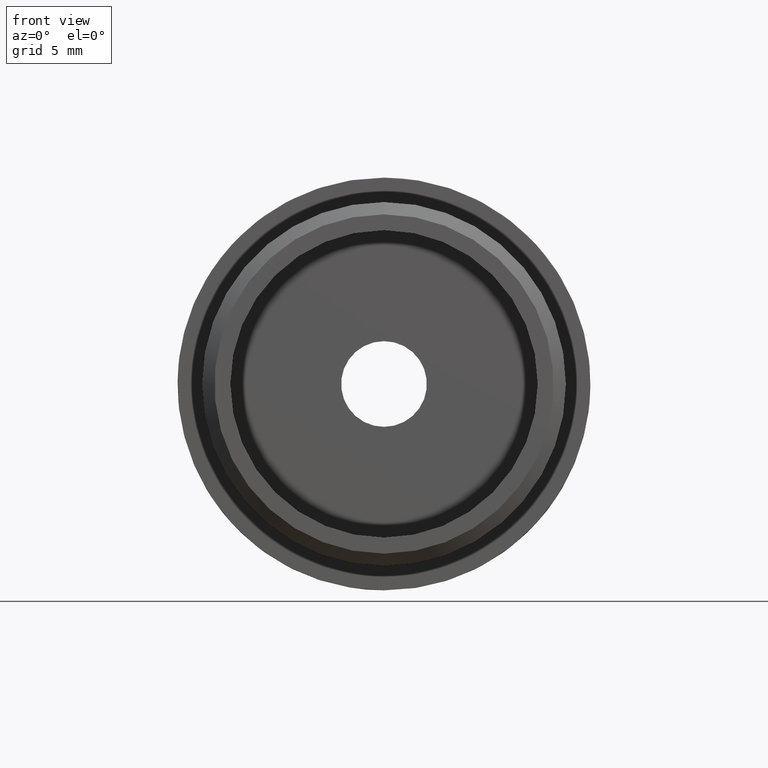
[diagram: clean part render]
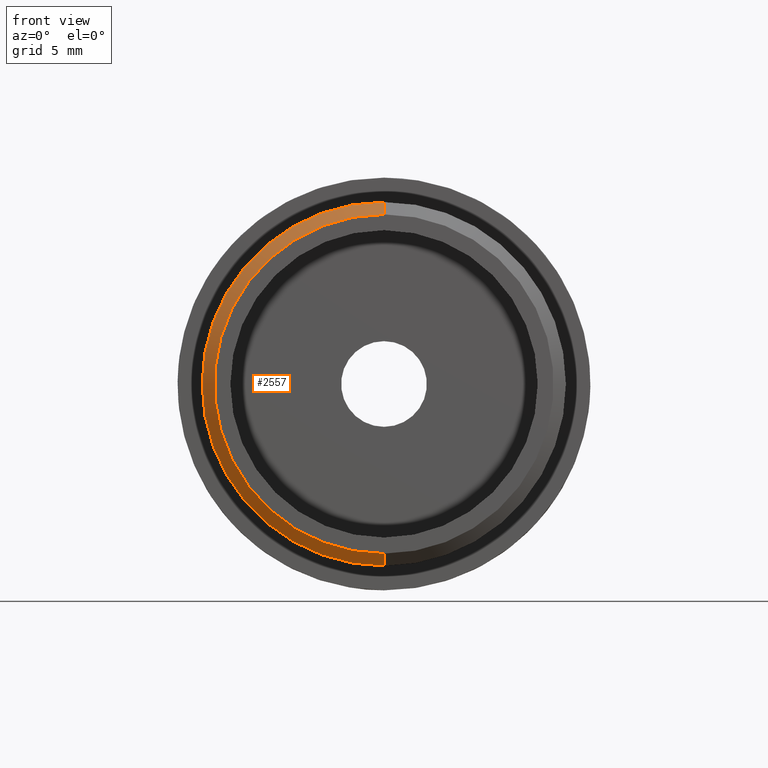
[diagram: same view with one face highlighted and labeled with its STEP entity id]
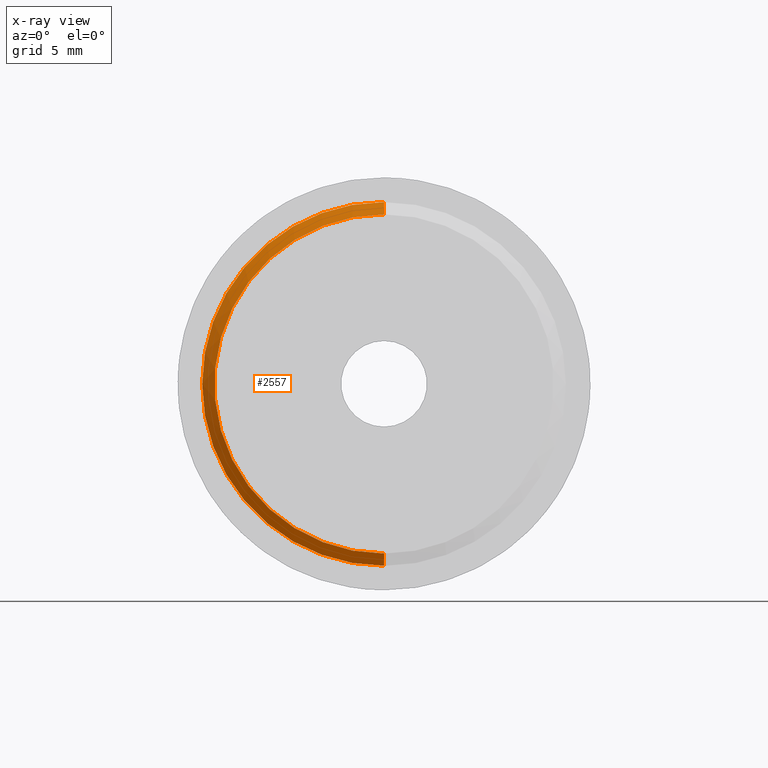
[diagram: x-ray of the same camera — body ghosted, the highlighted face saturated]
A machine part, front view. The second image highlights one B-rep face of the part: STEP entity #2557.
The next image is the same camera in x-ray: the body ghosted, the highlighted face saturated — about 0% of this face is hidden behind the body in this view.
In plain terms, the highlighted conical surface has half-angle 45 deg.
Its self-contained STEP definition (entity closure, byte-faithful):
#64 = DIRECTION ( 'NONE',  ( 8.659560562354879900E-017, 0.7071067811865517900, -0.7071067811865431300 ) ) ;
#636 = CARTESIAN_POINT ( 'NONE',  ( 0.0000000000000000000, -24.50000000000000000, 13.85000000000003300 ) ) ;
#1032 = ORIENTED_EDGE ( 'NONE', *, *, #10982, .T. ) ;
#1577 = DIRECTION ( 'NONE',  ( 0.0000000000000000000, 0.7071067811865517900, 0.7071067811865431300 ) ) ;
#1750 = DIRECTION ( 'NONE',  ( 0.0000000000000000000, 1.000000000000000000, 0.0000000000000000000 ) ) ;
#1770 = VECTOR ( 'NONE', #64, 1000.000000000000100 ) ;
#1968 = EDGE_CURVE ( 'NONE', #11783, #12388, #7688, .T. ) ;
#1973 = CARTESIAN_POINT ( 'NONE',  ( 1.818600496733819600E-015, -23.50000000000002100, -14.85000000000000100 ) ) ;
#2074 = LINE ( 'NONE', #11506, #1770 ) ;
#2557 = ADVANCED_FACE ( 'NONE', ( #12302 ), #9441, .T. ) ;
#2866 = AXIS2_PLACEMENT_3D ( 'NONE', #6431, #10907, #5205 ) ;
#4149 = VERTEX_POINT ( 'NONE', #7502 ) ;
#4173 = DIRECTION ( 'NONE',  ( 0.0000000000000000000, -1.000000000000000000, 0.0000000000000000000 ) ) ;
#4755 = LINE ( 'NONE', #636, #5062 ) ;
#4962 = CARTESIAN_POINT ( 'NONE',  ( 0.0000000000000000000, -23.50000000000002100, 14.85000000000000100 ) ) ;
#5062 = VECTOR ( 'NONE', #1577, 1000.000000000000100 ) ;
#5205 = DIRECTION ( 'NONE',  ( 0.0000000000000000000, 0.0000000000000000000, 1.000000000000000000 ) ) ;
#6267 = EDGE_LOOP ( 'NONE', ( #7266, #10073, #1032, #10668 ) ) ;
#6313 = EDGE_CURVE ( 'NONE', #11090, #4149, #6437, .T. ) ;
#6431 = CARTESIAN_POINT ( 'NONE',  ( 0.0000000000000000000, -24.50000000000000000, 0.0000000000000000000 ) ) ;
#6437 = CIRCLE ( 'NONE', #10466, 13.85000000000003300 ) ;
#7266 = ORIENTED_EDGE ( 'NONE', *, *, #7509, .F. ) ;
#7496 = CARTESIAN_POINT ( 'NONE',  ( 0.0000000000000000000, -23.50000000000002100, 0.0000000000000000000 ) ) ;
#7502 = CARTESIAN_POINT ( 'NONE',  ( 1.757368156776454300E-015, -24.50000000000000000, -13.85000000000003300 ) ) ;
#7509 = EDGE_CURVE ( 'NONE', #4149, #11783, #2074, .T. ) ;
#7688 = CIRCLE ( 'NONE', #11699, 14.85000000000000100 ) ;
#8422 = DIRECTION ( 'NONE',  ( 0.0000000000000000000, 0.0000000000000000000, -1.000000000000000000 ) ) ;
#9441 = CONICAL_SURFACE ( 'NONE', #2866, 13.85000000000003300, 0.7853981633974422800 ) ;
#9883 = CARTESIAN_POINT ( 'NONE',  ( 0.0000000000000000000, -24.50000000000000000, 0.0000000000000000000 ) ) ;
#10073 = ORIENTED_EDGE ( 'NONE', *, *, #6313, .F. ) ;
#10466 = AXIS2_PLACEMENT_3D ( 'NONE', #9883, #4173, #10839 ) ;
#10633 = CARTESIAN_POINT ( 'NONE',  ( 0.0000000000000000000, -24.50000000000000000, 13.85000000000003300 ) ) ;
#10668 = ORIENTED_EDGE ( 'NONE', *, *, #1968, .F. ) ;
#10839 = DIRECTION ( 'NONE',  ( 0.0000000000000000000, 0.0000000000000000000, -1.000000000000000000 ) ) ;
#10907 = DIRECTION ( 'NONE',  ( 0.0000000000000000000, 1.000000000000000000, 0.0000000000000000000 ) ) ;
#10982 = EDGE_CURVE ( 'NONE', #11090, #12388, #4755, .T. ) ;
#11090 = VERTEX_POINT ( 'NONE', #10633 ) ;
#11506 = CARTESIAN_POINT ( 'NONE',  ( 1.696135816819088300E-015, -24.50000000000000000, -13.85000000000003300 ) ) ;
#11699 = AXIS2_PLACEMENT_3D ( 'NONE', #7496, #1750, #8422 ) ;
#11783 = VERTEX_POINT ( 'NONE', #1973 ) ;
#12302 = FACE_OUTER_BOUND ( 'NONE', #6267, .T. ) ;
#12388 = VERTEX_POINT ( 'NONE', #4962 ) ;